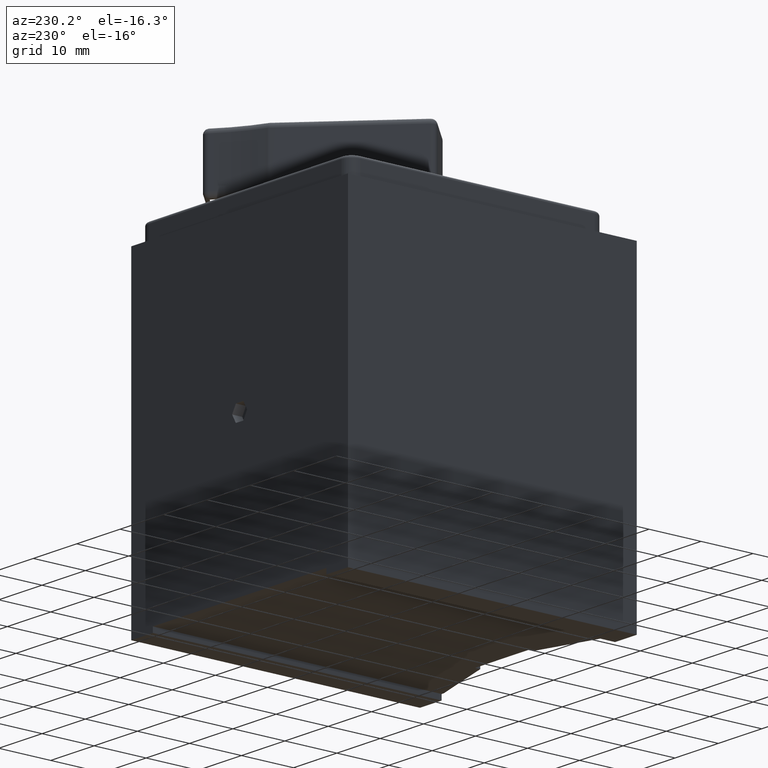
[diagram: clean part render]
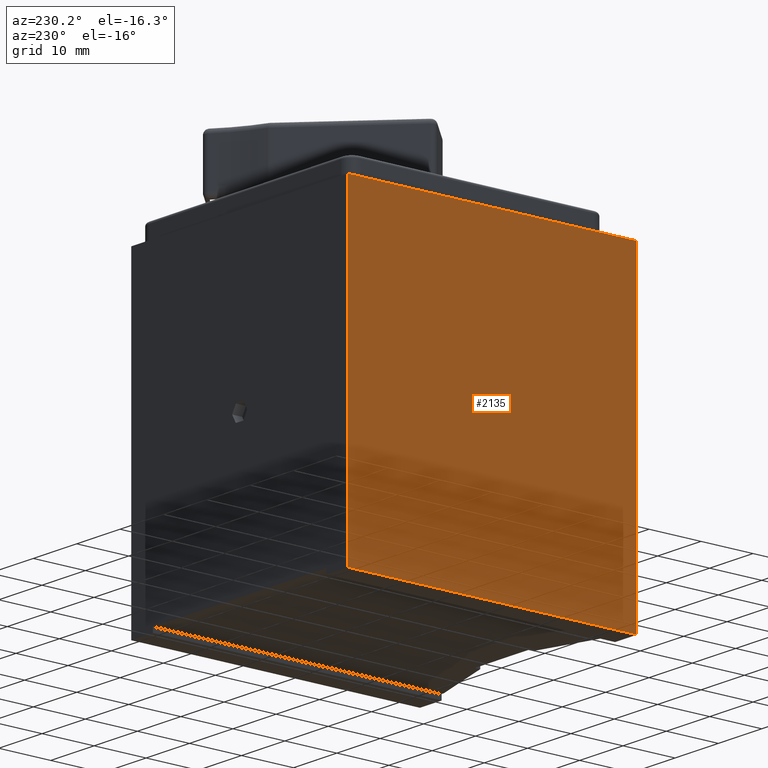
[diagram: same view with one face highlighted and labeled with its STEP entity id]
A machine part, auxiliary view. The second image highlights one B-rep face of the part: STEP entity #2135.
In plain terms, the highlighted planar face has unit normal (-1, -0, 0).
Its self-contained STEP definition (entity closure, byte-faithful):
#63 = VECTOR ( 'NONE', #1149, 1000.000000000000000 ) ;
#95 = ORIENTED_EDGE ( 'NONE', *, *, #2199, .F. ) ;
#570 = VECTOR ( 'NONE', #3162, 1000.000000000000000 ) ;
#958 = CARTESIAN_POINT ( 'NONE',  ( -31.92525369344761900, 27.78934803234973600, 47.69999999997618500 ) ) ;
#990 = LINE ( 'NONE', #4315, #2318 ) ;
#1149 = DIRECTION ( 'NONE',  ( 1.875376730785737500E-016, -1.000000000000000000, 0.0000000000000000000 ) ) ;
#1504 = DIRECTION ( 'NONE',  ( 1.875376730785737700E-016, -1.000000000000000000, 0.0000000000000000000 ) ) ;
#1585 = DIRECTION ( 'NONE',  ( 1.875376730785737500E-016, -1.000000000000000000, 0.0000000000000000000 ) ) ;
#1594 = DIRECTION ( 'NONE',  ( 0.0000000000000000000, 0.0000000000000000000, 1.000000000000000000 ) ) ;
#1596 = LINE ( 'NONE', #3918, #63 ) ;
#1754 = EDGE_LOOP ( 'NONE', ( #4439, #95, #4864, #5461 ) ) ;
#1815 = LINE ( 'NONE', #5850, #570 ) ;
#2135 = ADVANCED_FACE ( 'NONE', ( #4485 ), #3328, .T. ) ;
#2199 = EDGE_CURVE ( 'NONE', #5121, #2514, #3980, .T. ) ;
#2270 = VERTEX_POINT ( 'NONE', #5638 ) ;
#2318 = VECTOR ( 'NONE', #1585, 1000.000000000000000 ) ;
#2375 = DIRECTION ( 'NONE',  ( -1.000000000000000000, -1.875376730785737700E-016, 0.0000000000000000000 ) ) ;
#2514 = VERTEX_POINT ( 'NONE', #2801 ) ;
#2685 = CARTESIAN_POINT ( 'NONE',  ( -31.92525369344761900, 27.78934803234973600, 47.69999999997618500 ) ) ;
#2801 = CARTESIAN_POINT ( 'NONE',  ( -31.92525369344761900, 27.78934803234973600, 108.2999999999761900 ) ) ;
#3162 = DIRECTION ( 'NONE',  ( 0.0000000000000000000, 0.0000000000000000000, 1.000000000000000000 ) ) ;
#3328 = PLANE ( 'NONE',  #5143 ) ;
#3510 = EDGE_CURVE ( 'NONE', #2270, #4286, #1815, .T. ) ;
#3671 = CARTESIAN_POINT ( 'NONE',  ( -31.92525369344761200, -27.71065196765026400, 108.2999999999761900 ) ) ;
#3689 = EDGE_CURVE ( 'NONE', #5121, #2270, #990, .T. ) ;
#3918 = CARTESIAN_POINT ( 'NONE',  ( -31.92525369344761900, 27.78934803234973600, 108.2999999999761900 ) ) ;
#3980 = LINE ( 'NONE', #958, #5861 ) ;
#4082 = EDGE_CURVE ( 'NONE', #2514, #4286, #1596, .T. ) ;
#4286 = VERTEX_POINT ( 'NONE', #3671 ) ;
#4315 = CARTESIAN_POINT ( 'NONE',  ( -31.92525369344761900, 27.78934803234973600, 47.69999999997618500 ) ) ;
#4439 = ORIENTED_EDGE ( 'NONE', *, *, #4082, .F. ) ;
#4485 = FACE_OUTER_BOUND ( 'NONE', #1754, .T. ) ;
#4864 = ORIENTED_EDGE ( 'NONE', *, *, #3689, .T. ) ;
#5121 = VERTEX_POINT ( 'NONE', #2685 ) ;
#5125 = CARTESIAN_POINT ( 'NONE',  ( -31.92525369344761900, 27.78934803234973600, 47.69999999997618500 ) ) ;
#5143 = AXIS2_PLACEMENT_3D ( 'NONE', #5125, #2375, #1504 ) ;
#5461 = ORIENTED_EDGE ( 'NONE', *, *, #3510, .T. ) ;
#5638 = CARTESIAN_POINT ( 'NONE',  ( -31.92525369344761200, -27.71065196765026400, 47.69999999997618500 ) ) ;
#5850 = CARTESIAN_POINT ( 'NONE',  ( -31.92525369344761200, -27.71065196765026400, 47.69999999997618500 ) ) ;
#5861 = VECTOR ( 'NONE', #1594, 1000.000000000000000 ) ;